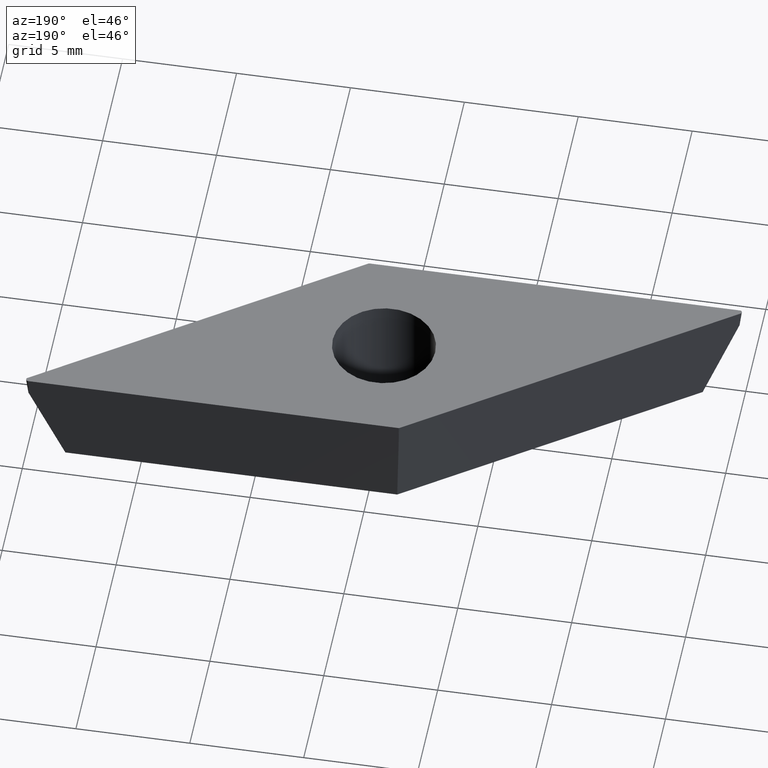
[diagram: clean part render]
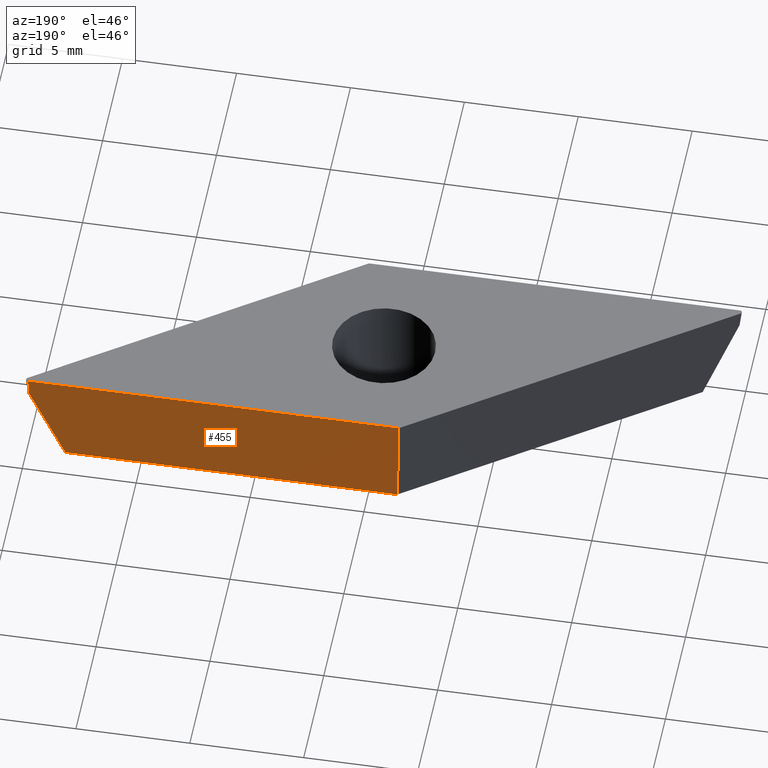
[diagram: same view with one face highlighted and labeled with its STEP entity id]
A machine part, auxiliary view. The second image highlights one B-rep face of the part: STEP entity #455.
In plain terms, the highlighted face is a freeform B-spline surface patch.
Its self-contained STEP definition (entity closure, byte-faithful):
#10 = CARTESIAN_POINT ( 'NONE',  ( -1.342790669617006900, 4.258787908418475400, -4.102405773799581800 ) ) ;
#22 = VERTEX_POINT ( 'NONE', #231 ) ;
#29 = VERTEX_POINT ( 'NONE', #287 ) ;
#32 = EDGE_LOOP ( 'NONE', ( #346, #358, #364, #365, #368, #376 ) ) ;
#38 = VERTEX_POINT ( 'NONE', #148 ) ;
#51 = VECTOR ( 'NONE', #138, 1000.000000000000000 ) ;
#67 = CARTESIAN_POINT ( 'NONE',  ( 3.949133186574038700, 4.061154588122606800, -5.711999999999998900 ) ) ;
#74 = CARTESIAN_POINT ( 'NONE',  ( 9.368346976296321000, 4.061154588122611200, -5.711999999999998900 ) ) ;
#75 = CARTESIAN_POINT ( 'NONE',  ( 14.78756076601861500, 4.061154588122611200, -5.711999999999998900 ) ) ;
#77 = CARTESIAN_POINT ( 'NONE',  ( -1.470080603148251800, 4.762499999999999300, 0.0000000000000000000 ) ) ;
#80 = CARTESIAN_POINT ( 'NONE',  ( 3.949133186574037800, 4.762499999999999300, 0.0000000000000000000 ) ) ;
#83 = CARTESIAN_POINT ( 'NONE',  ( 9.368346976296321000, 4.762500000000003700, 0.0000000000000000000 ) ) ;
#84 = DIRECTION ( 'NONE',  ( -1.000000000000000000, -2.611539394764484900E-016, -0.0000000000000000000 ) ) ;
#85 = CARTESIAN_POINT ( 'NONE',  ( 14.78756076601861500, 4.762500000000003700, 0.0000000000000000000 ) ) ;
#97 = CARTESIAN_POINT ( 'NONE',  ( -1.501610482036148000, 4.762499999999999300, 0.0000000000000000000 ) ) ;
#98 = CARTESIAN_POINT ( 'NONE',  ( -1.317332682910756800, 4.178045490102173100, -4.759999999999998900 ) ) ;
#102 = CARTESIAN_POINT ( 'NONE',  ( 13.25106736044730100, 4.178045490102176600, -4.759999999999998900 ) ) ;
#103 = CARTESIAN_POINT ( 'NONE',  ( 8.394934012661277500, 4.178045490102176600, -4.759999999999997100 ) ) ;
#108 = B_SPLINE_CURVE_WITH_KNOTS ( 'NONE', 3,
 ( #127, #10, #118, #117, #131, #129, #128 ),
 .UNSPECIFIED., .F., .F.,
 ( 4, 3, 4 ),
 ( 0.0000000000000000000, 0.001989064735450666100, 0.003978129470901333900 ),
 .UNSPECIFIED. ) ;
#114 = CARTESIAN_POINT ( 'NONE',  ( 14.78756076601861500, 4.762500000000003700, 0.0000000000000000000 ) ) ;
#117 = CARTESIAN_POINT ( 'NONE',  ( -1.393706643029502600, 4.420272745051085500, -2.787217321398748600 ) ) ;
#118 = CARTESIAN_POINT ( 'NONE',  ( -1.368248656323254100, 4.339530326734782200, -3.444811547599165600 ) ) ;
#119 = DIRECTION ( 'NONE',  ( 3.182665913166247500E-017, -0.1218693434051477400, -0.9925461516413219800 ) ) ;
#123 = VECTOR ( 'NONE', #119, 1000.000000000000000 ) ;
#124 = VERTEX_POINT ( 'NONE', #309 ) ;
#126 = CARTESIAN_POINT ( 'NONE',  ( 14.78756076601861500, 4.662500000000004100, -0.8144346427974578100 ) ) ;
#127 = CARTESIAN_POINT ( 'NONE',  ( -1.317332682910756800, 4.178045490102173100, -4.759999999999998900 ) ) ;
#128 = CARTESIAN_POINT ( 'NONE',  ( -1.470080603148246300, 4.662499999999996100, -0.8144346427974968900 ) ) ;
#129 = CARTESIAN_POINT ( 'NONE',  ( -1.444622616442004200, 4.581757581683691100, -1.472028868997913700 ) ) ;
#131 = CARTESIAN_POINT ( 'NONE',  ( -1.419164629735751200, 4.501015163367388700, -2.129623095198331500 ) ) ;
#138 = DIRECTION ( 'NONE',  ( -3.182665913166247500E-017, 0.1218693434051477400, 0.9925461516413219800 ) ) ;
#145 = B_SPLINE_CURVE_WITH_KNOTS ( 'NONE', 3,
 ( #102, #103, #192, #98 ),
 .UNSPECIFIED., .F., .F.,
 ( 4, 4 ),
 ( 0.0000000000000000000, 0.01456840004335805900 ),
 .UNSPECIFIED. ) ;
#148 = CARTESIAN_POINT ( 'NONE',  ( -1.317332682910756800, 4.178045490102173100, -4.759999999999998900 ) ) ;
#161 = CARTESIAN_POINT ( 'NONE',  ( 13.50714959470895600, 4.258787908418492300, -4.102405773799485900 ) ) ;
#169 = CARTESIAN_POINT ( 'NONE',  ( 13.25106736044730100, 4.178045490102176600, -4.759999999999998900 ) ) ;
#171 = CARTESIAN_POINT ( 'NONE',  ( -1.470080603148251800, 4.762499999999999300, 0.0000000000000000000 ) ) ;
#177 = VECTOR ( 'NONE', #84, 1000.000000000000000 ) ;
#180 = LINE ( 'NONE', #171, #51 ) ;
#181 = CARTESIAN_POINT ( 'NONE',  ( 14.78756076601861500, 4.662500000000004100, -0.8144346427974578100 ) ) ;
#189 = CARTESIAN_POINT ( 'NONE',  ( 13.76323182897069600, 4.339530326734805300, -3.444811547599007100 ) ) ;
#192 = CARTESIAN_POINT ( 'NONE',  ( 3.538800664875263900, 4.178045490102172200, -4.759999999999998000 ) ) ;
#193 = CARTESIAN_POINT ( 'NONE',  ( 14.53147853175643400, 4.581757581683713300, -1.472028868997768100 ) ) ;
#194 = CARTESIAN_POINT ( 'NONE',  ( 14.27539629749443700, 4.501015163367415400, -2.129623095198148100 ) ) ;
#197 = CARTESIAN_POINT ( 'NONE',  ( 14.01931406323256700, 4.420272745051110300, -2.787217321398577100 ) ) ;
#207 = CARTESIAN_POINT ( 'NONE',  ( -1.470080603148251600, 4.061154588122606800, -5.711999999999998900 ) ) ;
#225 = FACE_OUTER_BOUND ( 'NONE', #32, .T. ) ;
#231 = CARTESIAN_POINT ( 'NONE',  ( -1.470080603148246300, 4.662499999999996100, -0.8144346427974968900 ) ) ;
#241 = LINE ( 'NONE', #97, #177 ) ;
#244 = CARTESIAN_POINT ( 'NONE',  ( 14.78756076601861500, 4.762500000000003700, 0.0000000000000000000 ) ) ;
#267 = B_SPLINE_CURVE_WITH_KNOTS ( 'NONE', 3,
 ( #169, #161, #189, #197, #194, #193, #126 ),
 .UNSPECIFIED., .F., .F.,
 ( 4, 3, 4 ),
 ( 0.0000000000000000000, 0.002130903220789326900, 0.004261806441578652000 ),
 .UNSPECIFIED. ) ;
#281 = VERTEX_POINT ( 'NONE', #244 ) ;
#287 = CARTESIAN_POINT ( 'NONE',  ( -1.470080603148250700, 4.762499999999999300, 0.0000000000000000000 ) ) ;
#309 = CARTESIAN_POINT ( 'NONE',  ( 13.25106736044730100, 4.178045490102176600, -4.759999999999998900 ) ) ;
#324 = B_SPLINE_SURFACE_WITH_KNOTS ( 'NONE', 1, 3, ( 
 ( #85, #83, #80, #77 ),
 ( #75, #74, #67, #207 ) ),
 .UNSPECIFIED., .F., .F., .F.,
 ( 2, 2 ),
 ( 4, 4 ),
 ( 0.0000000000000000000, 1.000000000000000000 ),
 ( -0.01628917124805476200, -3.152987888789733100E-005 ),
 .UNSPECIFIED. ) ;
#346 = ORIENTED_EDGE ( 'NONE', *, *, #445, .T. ) ;
#358 = ORIENTED_EDGE ( 'NONE', *, *, #431, .T. ) ;
#364 = ORIENTED_EDGE ( 'NONE', *, *, #414, .T. ) ;
#365 = ORIENTED_EDGE ( 'NONE', *, *, #453, .F. ) ;
#368 = ORIENTED_EDGE ( 'NONE', *, *, #433, .T. ) ;
#376 = ORIENTED_EDGE ( 'NONE', *, *, #423, .F. ) ;
#391 = LINE ( 'NONE', #114, #123 ) ;
#414 = EDGE_CURVE ( 'NONE', #22, #29, #180, .T. ) ;
#423 = EDGE_CURVE ( 'NONE', #124, #449, #267, .T. ) ;
#431 = EDGE_CURVE ( 'NONE', #38, #22, #108, .T. ) ;
#433 = EDGE_CURVE ( 'NONE', #281, #449, #391, .T. ) ;
#445 = EDGE_CURVE ( 'NONE', #124, #38, #145, .T. ) ;
#449 = VERTEX_POINT ( 'NONE', #181 ) ;
#453 = EDGE_CURVE ( 'NONE', #281, #29, #241, .T. ) ;
#455 = ADVANCED_FACE ( 'NONE', ( #225 ), #324, .T. ) ;